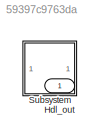
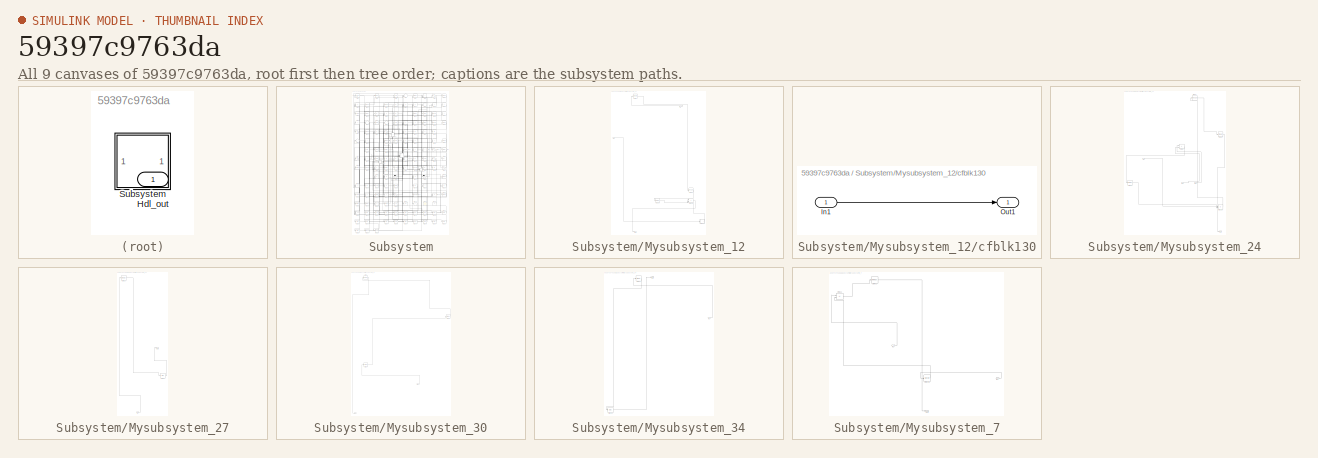
[diagram: thumbnail index - all 9 canvases of the model, root first then tree order]
MODEL slx_59397c9763da
KIND model
CONFIG AbsTol = auto
CONFIG EnableMultiTasking = off
CONFIG FixedStep = auto
CONFIG MaxStep = auto
CONFIG MinStep = auto
CONFIG RelTol = 1e-3
CONFIG SampleTimeConstraint = Unconstrained
CONFIG SolverName = VariableStepAuto
CONFIG StartTime = 0.0
CONFIG StopTime = 10.0
BLOCK [Outport] Hdl_out
  OutDataTypeStr = uint8
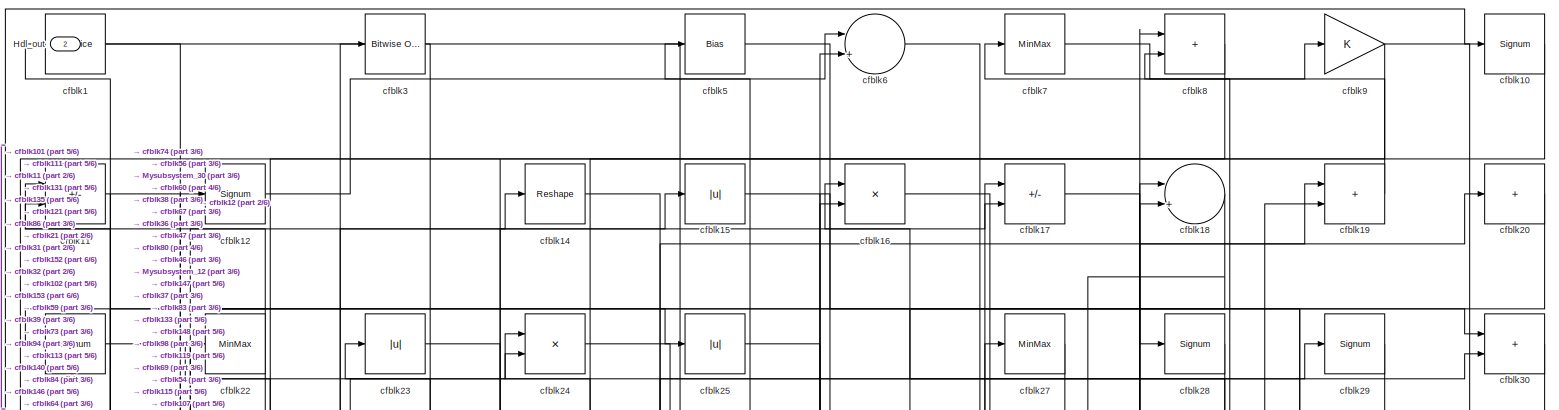
[diagram: Subsystem - part 1/6, full width, top band]
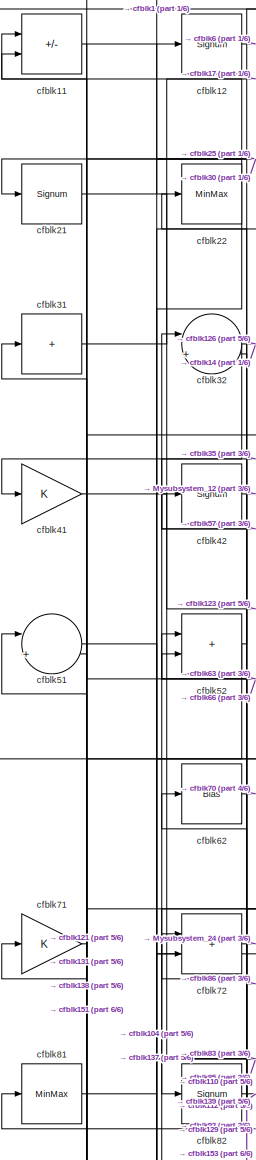
[diagram: Subsystem - part 2/6, top left region]
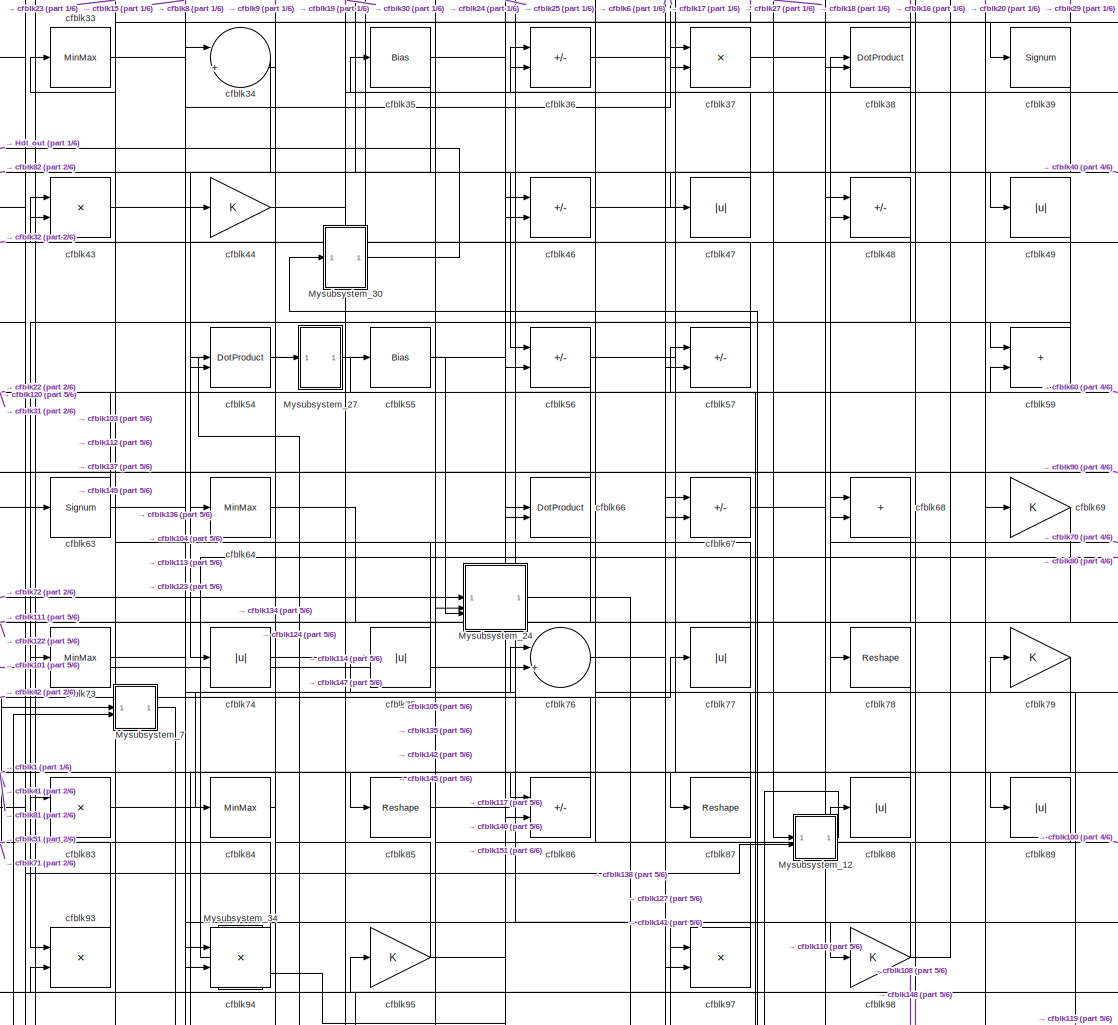
[diagram: Subsystem - part 3/6, central region]
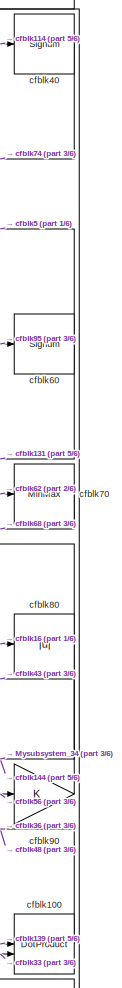
[diagram: Subsystem - part 4/6, middle right region]
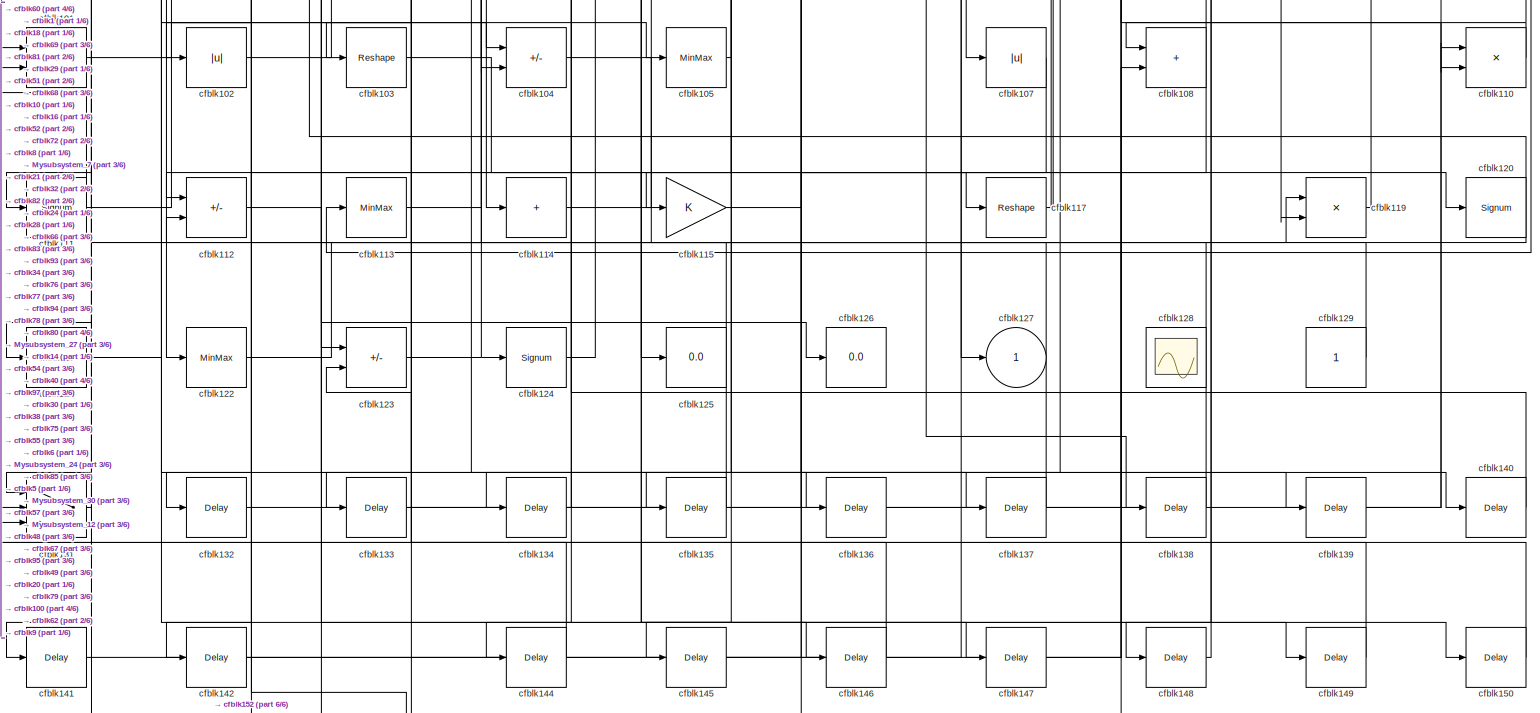
[diagram: Subsystem - part 5/6, full width, bottom band]
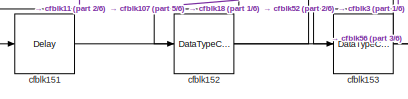
[diagram: Subsystem - part 6/6, bottom left region]
BLOCK [SubSystem] Subsystem
BLOCK [Outport] Subsystem/Hdl_out
  OutDataTypeStr = uint8
  Port = 2
BLOCK [SubSystem] Subsystem/Mysubsystem_12
  RTWFcnName = Mysubsystem_12
  RTWFcnNameOpts = User specified
  RTWFileNameOpts = Use function name
  RTWSystemCode = Reusable function
  TreatAsAtomicUnit = on
BLOCK [Inport] Subsystem/Mysubsystem_12/In2
  Port = 2
BLOCK [Outport] Subsystem/Mysubsystem_12/Out1
BLOCK [Inport] Subsystem/Mysubsystem_12/U
BLOCK [MinMax] Subsystem/Mysubsystem_12/cfblk106
BLOCK [Sum] Subsystem/Mysubsystem_12/cfblk109
  IconShape = rectangular
BLOCK [SubSystem] Subsystem/Mysubsystem_12/cfblk130
  LibrarySourceBlock = hdlsllib/Ports &\nSubsystems/Subsystem
BLOCK [Inport] Subsystem/Mysubsystem_12/cfblk130/In1
BLOCK [Outport] Subsystem/Mysubsystem_12/cfblk130/Out1
BLOCK [Reference] Subsystem/Mysubsystem_12/cfblk4  REF=hdlsllib/Logic and Bit
Operations/Detect Rise
Nonnegative
  SourceBlock = hdlsllib/Logic and Bit\nOperations/Detect Rise\nNonnegative
  SourceType = Detect Rise Nonnegative
BLOCK [Reshape] Subsystem/Mysubsystem_12/cfblk99
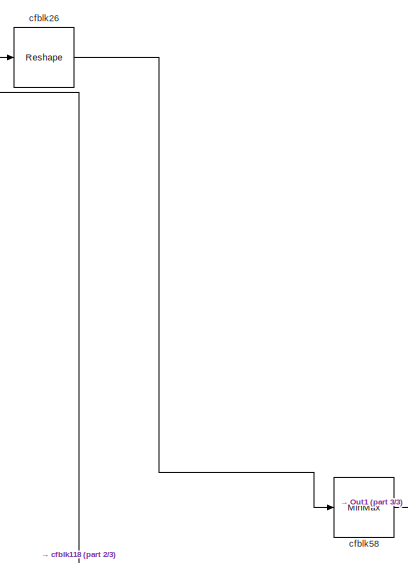
[diagram: Subsystem/Mysubsystem_24 - part 1/3, top right region]
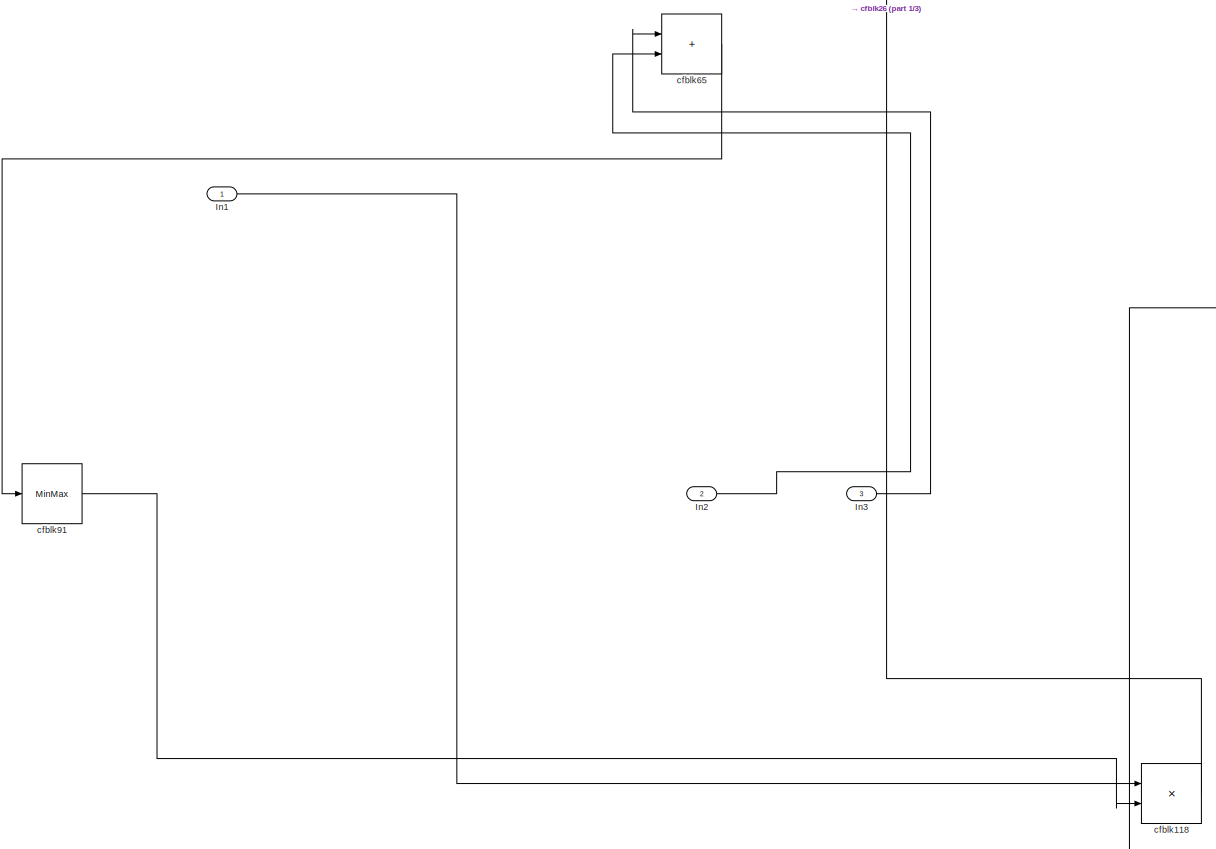
[diagram: Subsystem/Mysubsystem_24 - part 2/3, full width, middle band]
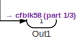
[diagram: Subsystem/Mysubsystem_24 - part 3/3, bottom right region]
BLOCK [SubSystem] Subsystem/Mysubsystem_24
  RTWFcnName = Mysubsystem_24
  RTWFcnNameOpts = User specified
  RTWFileNameOpts = Use function name
  RTWSystemCode = Reusable function
  TreatAsAtomicUnit = on
BLOCK [Inport] Subsystem/Mysubsystem_24/In1
BLOCK [Inport] Subsystem/Mysubsystem_24/In2
  Port = 2
BLOCK [Inport] Subsystem/Mysubsystem_24/In3
  Port = 3
BLOCK [Outport] Subsystem/Mysubsystem_24/Out1
BLOCK [Product] Subsystem/Mysubsystem_24/cfblk118
  Inputs = */
  RndMeth = Zero
  SaturateOnIntegerOverflow = on
BLOCK [Reshape] Subsystem/Mysubsystem_24/cfblk26
BLOCK [MinMax] Subsystem/Mysubsystem_24/cfblk58
BLOCK [Sum] Subsystem/Mysubsystem_24/cfblk65
  IconShape = rectangular
BLOCK [MinMax] Subsystem/Mysubsystem_24/cfblk91
BLOCK [SubSystem] Subsystem/Mysubsystem_27
  RTWFcnName = Mysubsystem_27
  RTWFcnNameOpts = User specified
  RTWFileNameOpts = Use function name
  RTWSystemCode = Reusable function
  TreatAsAtomicUnit = on
BLOCK [Inport] Subsystem/Mysubsystem_27/In1
BLOCK [Outport] Subsystem/Mysubsystem_27/Out1
BLOCK [MinMax] Subsystem/Mysubsystem_27/cfblk13
BLOCK [Bias] Subsystem/Mysubsystem_27/cfblk96
  Bias = 0.0
  SaturateOnIntegerOverflow = off
BLOCK [SubSystem] Subsystem/Mysubsystem_30
  RTWFcnName = Mysubsystem_30
  RTWFcnNameOpts = User specified
  RTWFileNameOpts = Use function name
  RTWSystemCode = Reusable function
  TreatAsAtomicUnit = on
BLOCK [Inport] Subsystem/Mysubsystem_30/In1
BLOCK [Outport] Subsystem/Mysubsystem_30/Y
BLOCK [Reference] Subsystem/Mysubsystem_30/cfblk2  REF=simulink/Logic and Bit
Operations/Detect
Change
  LibrarySourceBlock = hdlsllib/Logic and Bit\nOperations/Detect\nChange
  SourceBlock = simulink/Logic and Bit\nOperations/Detect\nChange
  SourceType = Detect Change
BLOCK [MinMax] Subsystem/Mysubsystem_30/cfblk50
BLOCK [Signum] Subsystem/Mysubsystem_30/cfblk92
BLOCK [SubSystem] Subsystem/Mysubsystem_34
  RTWFcnName = Mysubsystem_34
  RTWFcnNameOpts = User specified
  RTWFileNameOpts = Use function name
  RTWSystemCode = Reusable function
  TreatAsAtomicUnit = on
BLOCK [Inport] Subsystem/Mysubsystem_34/In1
BLOCK [Outport] Subsystem/Mysubsystem_34/Out1
BLOCK [Delay] Subsystem/Mysubsystem_34/cfblk143
  InputPortMap = u0
  SampleTime = 1
BLOCK [MinMax] Subsystem/Mysubsystem_34/cfblk45
BLOCK [SubSystem] Subsystem/Mysubsystem_7
  RTWFcnName = Mysubsystem_7
  RTWFcnNameOpts = User specified
  RTWFileNameOpts = Use function name
  RTWSystemCode = Reusable function
  TreatAsAtomicUnit = on
BLOCK [Inport] Subsystem/Mysubsystem_7/In1
BLOCK [Inport] Subsystem/Mysubsystem_7/In2
  Port = 2
BLOCK [Outport] Subsystem/Mysubsystem_7/Out1
BLOCK [Signum] Subsystem/Mysubsystem_7/cfblk116
BLOCK [MinMax] Subsystem/Mysubsystem_7/cfblk53
BLOCK [Sum] Subsystem/Mysubsystem_7/cfblk61
  IconShape = rectangular
  Inputs = +-
BLOCK [Reference] Subsystem/cfblk1  REF=hdlsllib/Logic and Bit
Operations/Bit Slice
  SourceBlock = hdlsllib/Logic and Bit\nOperations/Bit Slice
  SourceType = Bit Slice
BLOCK [Signum] Subsystem/cfblk10
BLOCK [DotProduct] Subsystem/cfblk100
  OutDataTypeStr = uint8
BLOCK [Sum] Subsystem/cfblk101
  IconShape = rectangular
  OutDataTypeStr = uint8
BLOCK [Abs] Subsystem/cfblk102
  OutDataTypeStr = uint8
  SaturateOnIntegerOverflow = off
BLOCK [Reshape] Subsystem/cfblk103
BLOCK [Sum] Subsystem/cfblk104
  IconShape = rectangular
  Inputs = +-
  OutDataTypeStr = uint8
BLOCK [MinMax] Subsystem/cfblk105
  OutDataTypeStr = uint8
BLOCK [Abs] Subsystem/cfblk107
  OutDataTypeStr = uint8
  SaturateOnIntegerOverflow = off
BLOCK [Sum] Subsystem/cfblk108
  IconShape = rectangular
  OutDataTypeStr = uint8
BLOCK [Sum] Subsystem/cfblk11
  IconShape = rectangular
  Inputs = +-
  OutDataTypeStr = uint8
BLOCK [Product] Subsystem/cfblk110
  Inputs = */
  OutDataTypeStr = uint8
  RndMeth = Zero
  SaturateOnIntegerOverflow = on
BLOCK [Signum] Subsystem/cfblk111
BLOCK [Sum] Subsystem/cfblk112
  IconShape = rectangular
  Inputs = +-
  OutDataTypeStr = uint8
BLOCK [MinMax] Subsystem/cfblk113
  OutDataTypeStr = uint8
BLOCK [Sum] Subsystem/cfblk114
  IconShape = rectangular
  Inputs = +
  OutDataTypeStr = uint8
BLOCK [Gain] Subsystem/cfblk115
  OutDataTypeStr = uint8
BLOCK [Reshape] Subsystem/cfblk117
BLOCK [Product] Subsystem/cfblk119
  Inputs = */
  OutDataTypeStr = uint8
  RndMeth = Zero
  SaturateOnIntegerOverflow = on
BLOCK [Signum] Subsystem/cfblk12
BLOCK [Signum] Subsystem/cfblk120
BLOCK [MinMax] Subsystem/cfblk121
  OutDataTypeStr = uint8
BLOCK [MinMax] Subsystem/cfblk122
  OutDataTypeStr = uint8
BLOCK [Sum] Subsystem/cfblk123
  IconShape = rectangular
  Inputs = +-
  OutDataTypeStr = uint8
BLOCK [Signum] Subsystem/cfblk124
BLOCK [Display] Subsystem/cfblk125
  Decimation = 1
BLOCK [Display] Subsystem/cfblk126
  Decimation = 1
BLOCK [Outport] Subsystem/cfblk127
  OutDataTypeStr = uint8
  VectorParamsAs1DForOutWhenUnconnected = off
BLOCK [Scope] Subsystem/cfblk128
  Floating = on
  NumInputPorts = 1
  ScopeSpecificationString = Simulink.scopes.TimeScopeBlockCfg('CurrentConfiguration', extmgr.ConfigurationSet(extmgr.Configuration('Core','General UI',true,'FigureColor',[0.156862745098039 0.156862745098039 0.156862745098039]),extmgr.Configuration('Core','Source UI',true),extmgr.Configuration('Sources','WiredSimulink',true,'DataLoggingSaveFormat','StructureWithTime','DataLoggingLimitDataPoints',true,'DataLoggingDecimation','...<+2674ch>
BLOCK [Constant] Subsystem/cfblk129
  OutDataTypeStr = uint8
  SampleTime = -1
BLOCK [Switch] Subsystem/cfblk131
  InputSameDT = off
  OutDataTypeStr = uint8
  SaturateOnIntegerOverflow = off
BLOCK [Delay] Subsystem/cfblk132
  InputPortMap = u0
  SampleTime = 1
BLOCK [Delay] Subsystem/cfblk133
  InputPortMap = u0
  SampleTime = 1
BLOCK [Delay] Subsystem/cfblk134
  InputPortMap = u0
  SampleTime = 1
BLOCK [Delay] Subsystem/cfblk135
  InputPortMap = u0
  SampleTime = 1
BLOCK [Delay] Subsystem/cfblk136
  InputPortMap = u0
  SampleTime = 1
BLOCK [Delay] Subsystem/cfblk137
  InputPortMap = u0
  SampleTime = 1
BLOCK [Delay] Subsystem/cfblk138
  InputPortMap = u0
  SampleTime = 1
BLOCK [Delay] Subsystem/cfblk139
  InputPortMap = u0
  SampleTime = 1
BLOCK [Reshape] Subsystem/cfblk14
BLOCK [Delay] Subsystem/cfblk140
  InputPortMap = u0
  SampleTime = 1
BLOCK [Delay] Subsystem/cfblk141
  InputPortMap = u0
  SampleTime = 1
BLOCK [Delay] Subsystem/cfblk142
  InputPortMap = u0
  SampleTime = 1
BLOCK [Delay] Subsystem/cfblk144
  InputPortMap = u0
  SampleTime = 1
BLOCK [Delay] Subsystem/cfblk145
  InputPortMap = u0
  SampleTime = 1
BLOCK [Delay] Subsystem/cfblk146
  InputPortMap = u0
  SampleTime = 1
BLOCK [Delay] Subsystem/cfblk147
  InputPortMap = u0
  SampleTime = 1
BLOCK [Delay] Subsystem/cfblk148
  InputPortMap = u0
  SampleTime = 1
BLOCK [Delay] Subsystem/cfblk149
  InputPortMap = u0
  SampleTime = 1
BLOCK [Abs] Subsystem/cfblk15
  OutDataTypeStr = uint8
  SaturateOnIntegerOverflow = off
BLOCK [Delay] Subsystem/cfblk150
  InputPortMap = u0
  SampleTime = 1
BLOCK [Delay] Subsystem/cfblk151
  InputPortMap = u0
  SampleTime = 1
BLOCK [DataTypeConversion] Subsystem/cfblk152
  OutDataTypeStr = uint8
  RndMeth = Floor
  SaturateOnIntegerOverflow = off
BLOCK [DataTypeConversion] Subsystem/cfblk153
  OutDataTypeStr = uint8
  RndMeth = Floor
  SaturateOnIntegerOverflow = off
BLOCK [Product] Subsystem/cfblk16
  Inputs = */
  OutDataTypeStr = uint8
  RndMeth = Zero
  SaturateOnIntegerOverflow = on
BLOCK [Sum] Subsystem/cfblk17
  IconShape = rectangular
  Inputs = +-
  OutDataTypeStr = uint8
BLOCK [Sum] Subsystem/cfblk18
  Inputs = |++
  OutDataTypeStr = uint8
BLOCK [Sum] Subsystem/cfblk19
  IconShape = rectangular
  OutDataTypeStr = uint8
BLOCK [Sum] Subsystem/cfblk20
  IconShape = rectangular
  Inputs = +
  OutDataTypeStr = uint8
BLOCK [Signum] Subsystem/cfblk21
BLOCK [MinMax] Subsystem/cfblk22
  OutDataTypeStr = uint8
BLOCK [Abs] Subsystem/cfblk23
  OutDataTypeStr = uint8
  SaturateOnIntegerOverflow = off
BLOCK [Product] Subsystem/cfblk24
  Inputs = */
  OutDataTypeStr = uint8
  RndMeth = Zero
  SaturateOnIntegerOverflow = on
BLOCK [Abs] Subsystem/cfblk25
  OutDataTypeStr = uint8
  SaturateOnIntegerOverflow = off
BLOCK [MinMax] Subsystem/cfblk27
  OutDataTypeStr = uint8
BLOCK [Signum] Subsystem/cfblk28
BLOCK [Signum] Subsystem/cfblk29
BLOCK [Reference] Subsystem/cfblk3  REF=simulink/Logic and Bit
Operations/Bitwise
Operator
  LibrarySourceBlock = hdlsllib/Logic and Bit\nOperations/Bitwise\nOperator
  SourceBlock = simulink/Logic and Bit\nOperations/Bitwise\nOperator
  SourceType = Bitwise Operator
BLOCK [Sum] Subsystem/cfblk30
  IconShape = rectangular
  OutDataTypeStr = uint8
BLOCK [Sum] Subsystem/cfblk31
  IconShape = rectangular
  Inputs = +
  OutDataTypeStr = uint8
BLOCK [Sum] Subsystem/cfblk32
  Inputs = |++
  OutDataTypeStr = uint8
BLOCK [MinMax] Subsystem/cfblk33
  OutDataTypeStr = uint8
BLOCK [Sum] Subsystem/cfblk34
  Inputs = |++
  OutDataTypeStr = uint8
BLOCK [Bias] Subsystem/cfblk35
  Bias = 0.0
  SaturateOnIntegerOverflow = off
BLOCK [Sum] Subsystem/cfblk36
  IconShape = rectangular
  Inputs = +-
  OutDataTypeStr = uint8
BLOCK [Product] Subsystem/cfblk37
  Inputs = */
  OutDataTypeStr = uint8
  RndMeth = Zero
  SaturateOnIntegerOverflow = on
BLOCK [DotProduct] Subsystem/cfblk38
  OutDataTypeStr = uint8
BLOCK [Signum] Subsystem/cfblk39
BLOCK [Signum] Subsystem/cfblk40
BLOCK [Gain] Subsystem/cfblk41
  OutDataTypeStr = uint8
BLOCK [Signum] Subsystem/cfblk42
BLOCK [Product] Subsystem/cfblk43
  Inputs = */
  OutDataTypeStr = uint8
  RndMeth = Zero
  SaturateOnIntegerOverflow = on
BLOCK [Gain] Subsystem/cfblk44
  OutDataTypeStr = uint8
BLOCK [Sum] Subsystem/cfblk46
  IconShape = rectangular
  Inputs = +-
  OutDataTypeStr = uint8
BLOCK [Abs] Subsystem/cfblk47
  OutDataTypeStr = uint8
  SaturateOnIntegerOverflow = off
BLOCK [Sum] Subsystem/cfblk48
  IconShape = rectangular
  Inputs = +-
  OutDataTypeStr = uint8
BLOCK [Abs] Subsystem/cfblk49
  OutDataTypeStr = uint8
  SaturateOnIntegerOverflow = off
BLOCK [Bias] Subsystem/cfblk5
  Bias = 0.0
  SaturateOnIntegerOverflow = off
BLOCK [Sum] Subsystem/cfblk51
  Inputs = |++
  OutDataTypeStr = uint8
BLOCK [Sum] Subsystem/cfblk52
  IconShape = rectangular
  OutDataTypeStr = uint8
BLOCK [DotProduct] Subsystem/cfblk54
  OutDataTypeStr = uint8
BLOCK [Bias] Subsystem/cfblk55
  Bias = 0.0
  SaturateOnIntegerOverflow = off
BLOCK [Sum] Subsystem/cfblk56
  IconShape = rectangular
  Inputs = +-
  OutDataTypeStr = uint8
BLOCK [Sum] Subsystem/cfblk57
  IconShape = rectangular
  Inputs = +-
  OutDataTypeStr = uint8
BLOCK [Sum] Subsystem/cfblk59
  IconShape = rectangular
  OutDataTypeStr = uint8
BLOCK [Sum] Subsystem/cfblk6
  Inputs = |++
  OutDataTypeStr = uint8
BLOCK [Signum] Subsystem/cfblk60
BLOCK [Bias] Subsystem/cfblk62
  Bias = 0.0
  SaturateOnIntegerOverflow = off
BLOCK [Signum] Subsystem/cfblk63
BLOCK [MinMax] Subsystem/cfblk64
  OutDataTypeStr = uint8
BLOCK [DotProduct] Subsystem/cfblk66
  OutDataTypeStr = uint8
BLOCK [Sum] Subsystem/cfblk67
  IconShape = rectangular
  Inputs = +-
  OutDataTypeStr = uint8
BLOCK [Sum] Subsystem/cfblk68
  IconShape = rectangular
  OutDataTypeStr = uint8
BLOCK [Gain] Subsystem/cfblk69
  OutDataTypeStr = uint8
BLOCK [MinMax] Subsystem/cfblk7
  OutDataTypeStr = uint8
BLOCK [MinMax] Subsystem/cfblk70
  OutDataTypeStr = uint8
BLOCK [Gain] Subsystem/cfblk71
  OutDataTypeStr = uint8
BLOCK [Sum] Subsystem/cfblk72
  IconShape = rectangular
  OutDataTypeStr = uint8
BLOCK [MinMax] Subsystem/cfblk73
  OutDataTypeStr = uint8
BLOCK [Abs] Subsystem/cfblk74
  OutDataTypeStr = uint8
  SaturateOnIntegerOverflow = off
BLOCK [Abs] Subsystem/cfblk75
  OutDataTypeStr = uint8
  SaturateOnIntegerOverflow = off
BLOCK [Sum] Subsystem/cfblk76
  Inputs = |++
  OutDataTypeStr = uint8
BLOCK [Abs] Subsystem/cfblk77
  OutDataTypeStr = uint8
  SaturateOnIntegerOverflow = off
BLOCK [Reshape] Subsystem/cfblk78
BLOCK [Gain] Subsystem/cfblk79
  OutDataTypeStr = uint8
BLOCK [Sum] Subsystem/cfblk8
  IconShape = rectangular
  OutDataTypeStr = uint8
BLOCK [Abs] Subsystem/cfblk80
  OutDataTypeStr = uint8
  SaturateOnIntegerOverflow = off
BLOCK [MinMax] Subsystem/cfblk81
  OutDataTypeStr = uint8
BLOCK [Signum] Subsystem/cfblk82
BLOCK [Product] Subsystem/cfblk83
  Inputs = */
  OutDataTypeStr = uint8
  RndMeth = Zero
  SaturateOnIntegerOverflow = on
BLOCK [MinMax] Subsystem/cfblk84
  OutDataTypeStr = uint8
BLOCK [Reshape] Subsystem/cfblk85
BLOCK [Sum] Subsystem/cfblk86
  IconShape = rectangular
  Inputs = +-
  OutDataTypeStr = uint8
BLOCK [Reshape] Subsystem/cfblk87
BLOCK [Abs] Subsystem/cfblk88
  OutDataTypeStr = uint8
  SaturateOnIntegerOverflow = off
BLOCK [Abs] Subsystem/cfblk89
  OutDataTypeStr = uint8
  SaturateOnIntegerOverflow = off
BLOCK [Gain] Subsystem/cfblk9
  OutDataTypeStr = uint8
BLOCK [Gain] Subsystem/cfblk90
  OutDataTypeStr = uint8
BLOCK [Product] Subsystem/cfblk93
  Inputs = */
  OutDataTypeStr = uint8
  RndMeth = Zero
  SaturateOnIntegerOverflow = on
BLOCK [Product] Subsystem/cfblk94
  Inputs = */
  OutDataTypeStr = uint8
  RndMeth = Zero
  SaturateOnIntegerOverflow = on
BLOCK [Gain] Subsystem/cfblk95
  OutDataTypeStr = uint8
BLOCK [Product] Subsystem/cfblk97
  Inputs = */
  OutDataTypeStr = uint8
  RndMeth = Zero
  SaturateOnIntegerOverflow = on
BLOCK [Gain] Subsystem/cfblk98
  OutDataTypeStr = uint8
LINE Subsystem/Mysubsystem_12/In2:1 -> Subsystem/Mysubsystem_12/cfblk130:1
LINE Subsystem/Mysubsystem_12/U:1 -> Subsystem/Mysubsystem_12/cfblk4:1
LINE Subsystem/Mysubsystem_12/cfblk106:1 -> Subsystem/Mysubsystem_12/cfblk109:1
LINE Subsystem/Mysubsystem_12/cfblk109:1 -> Subsystem/Mysubsystem_12/Out1:1
LINE Subsystem/Mysubsystem_12/cfblk130/In1:1 -> Subsystem/Mysubsystem_12/cfblk130/Out1:1
LINE Subsystem/Mysubsystem_12/cfblk130:1 -> Subsystem/Mysubsystem_12/cfblk109:2
LINE Subsystem/Mysubsystem_12/cfblk4:1 -> Subsystem/Mysubsystem_12/cfblk99:1
LINE Subsystem/Mysubsystem_12/cfblk99:1 -> Subsystem/Mysubsystem_12/cfblk106:1
LINE Subsystem/Mysubsystem_12:1 -> Subsystem/cfblk134:1
LINE Subsystem/Mysubsystem_24/In1:1 -> Subsystem/Mysubsystem_24/cfblk118:1
LINE Subsystem/Mysubsystem_24/In2:1 -> Subsystem/Mysubsystem_24/cfblk65:2
LINE Subsystem/Mysubsystem_24/In3:1 -> Subsystem/Mysubsystem_24/cfblk65:1
LINE Subsystem/Mysubsystem_24/cfblk118:1 -> Subsystem/Mysubsystem_24/cfblk26:1
LINE Subsystem/Mysubsystem_24/cfblk26:1 -> Subsystem/Mysubsystem_24/cfblk58:1
LINE Subsystem/Mysubsystem_24/cfblk58:1 -> Subsystem/Mysubsystem_24/Out1:1
LINE Subsystem/Mysubsystem_24/cfblk65:1 -> Subsystem/Mysubsystem_24/cfblk91:1
LINE Subsystem/Mysubsystem_24/cfblk91:1 -> Subsystem/Mysubsystem_24/cfblk118:2
LINE Subsystem/Mysubsystem_24:1 -> Subsystem/cfblk138:1
LINE Subsystem/Mysubsystem_27/In1:1 -> Subsystem/Mysubsystem_27/cfblk13:1
LINE Subsystem/Mysubsystem_27/cfblk13:1 -> Subsystem/Mysubsystem_27/cfblk96:1
LINE Subsystem/Mysubsystem_27/cfblk96:1 -> Subsystem/Mysubsystem_27/Out1:1
LINE Subsystem/Mysubsystem_27:1 -> Subsystem/Mysubsystem_24:3
LINE Subsystem/Mysubsystem_30/In1:1 -> Subsystem/Mysubsystem_30/cfblk92:1
LINE Subsystem/Mysubsystem_30/cfblk2:1 -> Subsystem/Mysubsystem_30/Y:1
LINE Subsystem/Mysubsystem_30/cfblk50:1 -> Subsystem/Mysubsystem_30/cfblk2:1
LINE Subsystem/Mysubsystem_30/cfblk92:1 -> Subsystem/Mysubsystem_30/cfblk50:1
NET Subsystem/Mysubsystem_30:1 -> Subsystem/Hdl_out:1, Subsystem/cfblk141:1
LINE Subsystem/Mysubsystem_34/In1:1 -> Subsystem/Mysubsystem_34/cfblk45:1
LINE Subsystem/Mysubsystem_34/cfblk143:1 -> Subsystem/Mysubsystem_34/Out1:1
LINE Subsystem/Mysubsystem_34/cfblk45:1 -> Subsystem/Mysubsystem_34/cfblk143:1
LINE Subsystem/Mysubsystem_34:1 -> Subsystem/cfblk46:1
LINE Subsystem/Mysubsystem_7/In1:1 -> Subsystem/Mysubsystem_7/cfblk61:1
LINE Subsystem/Mysubsystem_7/In2:1 -> Subsystem/Mysubsystem_7/cfblk116:1
LINE Subsystem/Mysubsystem_7/cfblk116:1 -> Subsystem/Mysubsystem_7/cfblk61:2
LINE Subsystem/Mysubsystem_7/cfblk53:1 -> Subsystem/Mysubsystem_7/Out1:1
LINE Subsystem/Mysubsystem_7/cfblk61:1 -> Subsystem/Mysubsystem_7/cfblk53:1
LINE Subsystem/Mysubsystem_7:1 -> Subsystem/cfblk136:1
NET Subsystem/cfblk100:1 -> Subsystem/cfblk36:2, Subsystem/cfblk48:2
NET Subsystem/cfblk101:1 -> Subsystem/cfblk105:1, Subsystem/cfblk150:1, Subsystem/cfblk76:2
LINE Subsystem/cfblk102:1 -> Subsystem/cfblk24:1
NET Subsystem/cfblk103:1 -> Subsystem/cfblk125:1, Subsystem/cfblk76:1
LINE Subsystem/cfblk104:1 -> Subsystem/cfblk119:1
LINE Subsystem/cfblk105:1 -> Subsystem/cfblk75:1
LINE Subsystem/cfblk107:1 -> Subsystem/cfblk152:1
NET Subsystem/cfblk108:1 -> Subsystem/cfblk132:1, Subsystem/cfblk95:1
LINE Subsystem/cfblk10:1 -> Subsystem/cfblk101:2
NET Subsystem/cfblk110:1 -> Subsystem/cfblk108:1, Subsystem/cfblk62:1
NET Subsystem/cfblk111:1 -> Subsystem/cfblk10:1, Subsystem/cfblk16:2
NET Subsystem/cfblk112:1 -> Subsystem/cfblk149:1, Subsystem/cfblk72:1
LINE Subsystem/cfblk113:1 -> Subsystem/cfblk94:1
NET Subsystem/cfblk114:1 -> Subsystem/cfblk40:1, Subsystem/cfblk97:1
LINE Subsystem/cfblk115:1 -> Subsystem/cfblk120:1
NET Subsystem/cfblk117:1 -> Subsystem/Mysubsystem_30:1, Subsystem/cfblk57:1
LINE Subsystem/cfblk119:1 -> Subsystem/cfblk79:1
NET Subsystem/cfblk11:1 -> Subsystem/cfblk151:1, Subsystem/cfblk30:1
NET Subsystem/cfblk120:1 -> Subsystem/Mysubsystem_7:2, Subsystem/cfblk112:2
LINE Subsystem/cfblk121:1 -> Subsystem/cfblk29:1
LINE Subsystem/cfblk122:1 -> Subsystem/cfblk34:1
NET Subsystem/cfblk123:1 -> Subsystem/cfblk124:1, Subsystem/cfblk77:1
LINE Subsystem/cfblk124:1 -> Subsystem/Mysubsystem_27:1
LINE Subsystem/cfblk129:1 -> Subsystem/cfblk52:1
LINE Subsystem/cfblk12:1 -> Subsystem/cfblk6:1
LINE Subsystem/cfblk131:1 -> Subsystem/cfblk81:1
LINE Subsystem/cfblk132:1 -> Subsystem/cfblk110:1
LINE Subsystem/cfblk133:1 -> Subsystem/cfblk6:2
LINE Subsystem/cfblk134:1 -> Subsystem/cfblk34:2
LINE Subsystem/cfblk135:1 -> Subsystem/cfblk1:1
LINE Subsystem/cfblk136:1 -> Subsystem/cfblk108:2
LINE Subsystem/cfblk137:1 -> Subsystem/cfblk93:2
LINE Subsystem/cfblk138:1 -> Subsystem/cfblk51:1
LINE Subsystem/cfblk139:1 -> Subsystem/cfblk100:1
LINE Subsystem/cfblk140:1 -> Subsystem/cfblk24:2
LINE Subsystem/cfblk141:1 -> Subsystem/cfblk67:1
LINE Subsystem/cfblk142:1 -> Subsystem/cfblk48:1
LINE Subsystem/cfblk144:1 -> Subsystem/cfblk123:2
LINE Subsystem/cfblk145:1 -> Subsystem/cfblk66:1
LINE Subsystem/cfblk146:1 -> Subsystem/cfblk101:1
LINE Subsystem/cfblk147:1 -> Subsystem/cfblk18:1
LINE Subsystem/cfblk148:1 -> Subsystem/cfblk8:2
LINE Subsystem/cfblk149:1 -> Subsystem/cfblk83:2
LINE Subsystem/cfblk14:1 -> Subsystem/cfblk146:1
LINE Subsystem/cfblk150:1 -> Subsystem/cfblk131:2
LINE Subsystem/cfblk151:1 -> Subsystem/cfblk56:2
LINE Subsystem/cfblk152:1 -> Subsystem/cfblk3:1
NET Subsystem/cfblk153:1 -> Subsystem/cfblk18:2, Subsystem/cfblk52:2
NET Subsystem/cfblk15:1 -> Subsystem/cfblk59:1, Subsystem/cfblk69:1
LINE Subsystem/cfblk16:1 -> Subsystem/cfblk80:1
LINE Subsystem/cfblk17:1 -> Subsystem/cfblk28:1
NET Subsystem/cfblk18:1 -> Subsystem/Mysubsystem_12:1, Subsystem/cfblk131:1
LINE Subsystem/cfblk19:1 -> Subsystem/cfblk7:1
NET Subsystem/cfblk1:1 -> Subsystem/cfblk12:1, Subsystem/cfblk86:2
NET Subsystem/cfblk20:1 -> Subsystem/cfblk119:2, Subsystem/cfblk86:1
NET Subsystem/cfblk21:1 -> Subsystem/cfblk123:1, Subsystem/cfblk25:1
NET Subsystem/cfblk22:1 -> Subsystem/cfblk11:2, Subsystem/cfblk21:1, Subsystem/cfblk72:2
LINE Subsystem/cfblk23:1 -> Subsystem/cfblk39:1
LINE Subsystem/cfblk24:1 -> Subsystem/cfblk56:1
LINE Subsystem/cfblk25:1 -> Subsystem/cfblk38:2
LINE Subsystem/cfblk27:1 -> Subsystem/cfblk46:2
LINE Subsystem/cfblk28:1 -> Subsystem/cfblk133:1
LINE Subsystem/cfblk29:1 -> Subsystem/cfblk54:1
LINE Subsystem/cfblk30:1 -> Subsystem/cfblk115:1
LINE Subsystem/cfblk31:1 -> Subsystem/cfblk17:2
NET Subsystem/cfblk32:1 -> Subsystem/cfblk126:1, Subsystem/cfblk14:1, Subsystem/cfblk41:1
LINE Subsystem/cfblk33:1 -> Subsystem/cfblk100:2
LINE Subsystem/cfblk34:1 -> Subsystem/cfblk63:1
NET Subsystem/cfblk35:1 -> Subsystem/cfblk49:1, Subsystem/cfblk82:1, Subsystem/cfblk98:1
LINE Subsystem/cfblk36:1 -> Subsystem/cfblk17:1
LINE Subsystem/cfblk37:1 -> Subsystem/cfblk20:1
NET Subsystem/cfblk38:1 -> Subsystem/cfblk142:1, Subsystem/cfblk145:1, Subsystem/cfblk16:1
NET Subsystem/cfblk39:1 -> Subsystem/cfblk37:2, Subsystem/cfblk47:1
LINE Subsystem/cfblk3:1 -> Subsystem/cfblk153:1
LINE Subsystem/cfblk40:1 -> Subsystem/cfblk74:1
LINE Subsystem/cfblk41:1 -> Subsystem/cfblk85:1
LINE Subsystem/cfblk42:1 -> Subsystem/Mysubsystem_12:2
LINE Subsystem/cfblk43:1 -> Subsystem/cfblk64:1
LINE Subsystem/cfblk44:1 -> Subsystem/cfblk68:1
LINE Subsystem/cfblk46:1 -> Subsystem/cfblk89:1
LINE Subsystem/cfblk47:1 -> Subsystem/cfblk27:1
NET Subsystem/cfblk48:1 -> Subsystem/cfblk57:2, Subsystem/cfblk73:1
NET Subsystem/cfblk49:1 -> Subsystem/cfblk104:2, Subsystem/cfblk148:1
NET Subsystem/cfblk51:1 -> Subsystem/cfblk137:1, Subsystem/cfblk66:2
NET Subsystem/cfblk52:1 -> Subsystem/cfblk121:1, Subsystem/cfblk32:2
LINE Subsystem/cfblk54:1 -> Subsystem/cfblk147:1
NET Subsystem/cfblk55:1 -> Subsystem/cfblk117:1, Subsystem/cfblk140:1
NET Subsystem/cfblk56:1 -> Subsystem/cfblk90:1, Subsystem/cfblk93:1
LINE Subsystem/cfblk57:1 -> Subsystem/cfblk32:1
LINE Subsystem/cfblk59:1 -> Subsystem/cfblk23:1
LINE Subsystem/cfblk5:1 -> Subsystem/cfblk107:1
NET Subsystem/cfblk60:1 -> Subsystem/cfblk131:3, Subsystem/cfblk5:1
LINE Subsystem/cfblk62:1 -> Subsystem/cfblk70:1
NET Subsystem/cfblk63:1 -> Subsystem/cfblk31:1, Subsystem/cfblk37:1
NET Subsystem/cfblk64:1 -> Subsystem/cfblk30:2, Subsystem/cfblk78:1
NET Subsystem/cfblk66:1 -> Subsystem/cfblk103:1, Subsystem/cfblk112:1, Subsystem/cfblk22:1
LINE Subsystem/cfblk67:1 -> Subsystem/cfblk110:2
LINE Subsystem/cfblk68:1 -> Subsystem/cfblk122:1
LINE Subsystem/cfblk69:1 -> Subsystem/cfblk111:1
LINE Subsystem/cfblk6:1 -> Subsystem/cfblk67:2
LINE Subsystem/cfblk70:1 -> Subsystem/cfblk68:2
LINE Subsystem/cfblk71:1 -> Subsystem/cfblk11:1
LINE Subsystem/cfblk72:1 -> Subsystem/Mysubsystem_24:1
LINE Subsystem/cfblk73:1 -> Subsystem/cfblk15:1
NET Subsystem/cfblk74:1 -> Subsystem/cfblk19:1, Subsystem/cfblk87:1
LINE Subsystem/cfblk75:1 -> Subsystem/cfblk43:2
LINE Subsystem/cfblk76:1 -> Subsystem/cfblk97:2
LINE Subsystem/cfblk77:1 -> Subsystem/cfblk33:1
LINE Subsystem/cfblk78:1 -> Subsystem/cfblk114:1
LINE Subsystem/cfblk79:1 -> Subsystem/cfblk135:1
LINE Subsystem/cfblk7:1 -> Subsystem/cfblk9:1
NET Subsystem/cfblk80:1 -> Subsystem/Mysubsystem_34:1, Subsystem/cfblk144:1
NET Subsystem/cfblk81:1 -> Subsystem/cfblk104:1, Subsystem/cfblk83:1
LINE Subsystem/cfblk82:1 -> Subsystem/cfblk139:1
LINE Subsystem/cfblk83:1 -> Subsystem/cfblk8:1
LINE Subsystem/cfblk84:1 -> Subsystem/cfblk54:2
NET Subsystem/cfblk85:1 -> Subsystem/cfblk127:1, Subsystem/cfblk59:2
LINE Subsystem/cfblk86:1 -> Subsystem/cfblk42:1
LINE Subsystem/cfblk87:1 -> Subsystem/cfblk35:1
LINE Subsystem/cfblk88:1 -> Subsystem/cfblk38:1
LINE Subsystem/cfblk89:1 -> Subsystem/cfblk88:1
NET Subsystem/cfblk8:1 -> Subsystem/cfblk102:1, Subsystem/cfblk94:2
LINE Subsystem/cfblk90:1 -> Subsystem/cfblk43:1
NET Subsystem/cfblk93:1 -> Subsystem/cfblk51:2, Subsystem/cfblk71:1
LINE Subsystem/cfblk94:1 -> Subsystem/Mysubsystem_7:1
NET Subsystem/cfblk95:1 -> Subsystem/Mysubsystem_24:2, Subsystem/cfblk44:1, Subsystem/cfblk60:1
LINE Subsystem/cfblk97:1 -> Subsystem/cfblk36:1
NET Subsystem/cfblk98:1 -> Subsystem/cfblk19:2, Subsystem/cfblk55:1
NET Subsystem/cfblk9:1 -> Subsystem/cfblk113:1, Subsystem/cfblk84:1
note: NET lines group one-source signal fan-out (src -> all destinations, sorted); 1:1 wires keep LINE
